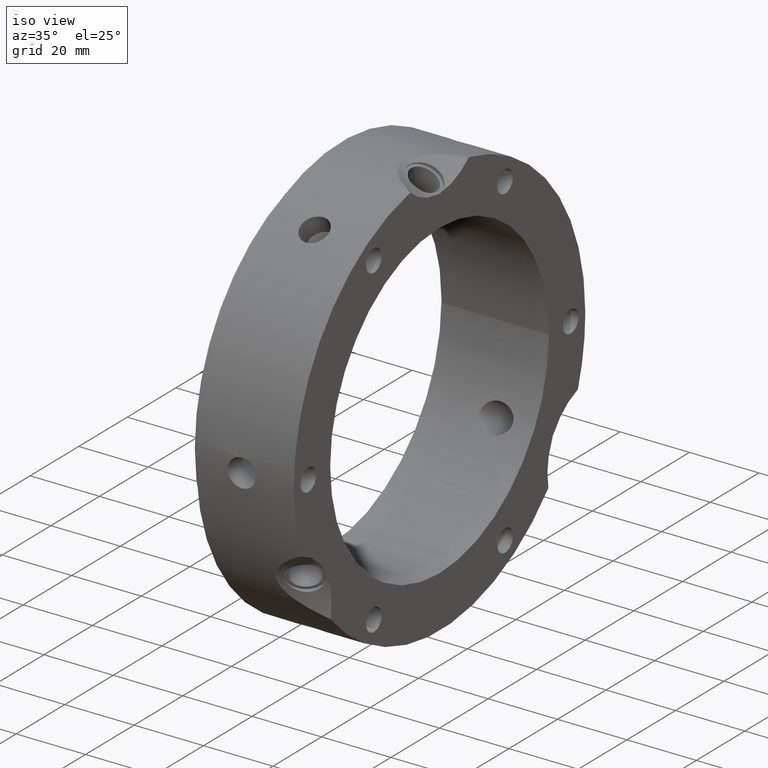
[diagram: clean part render]
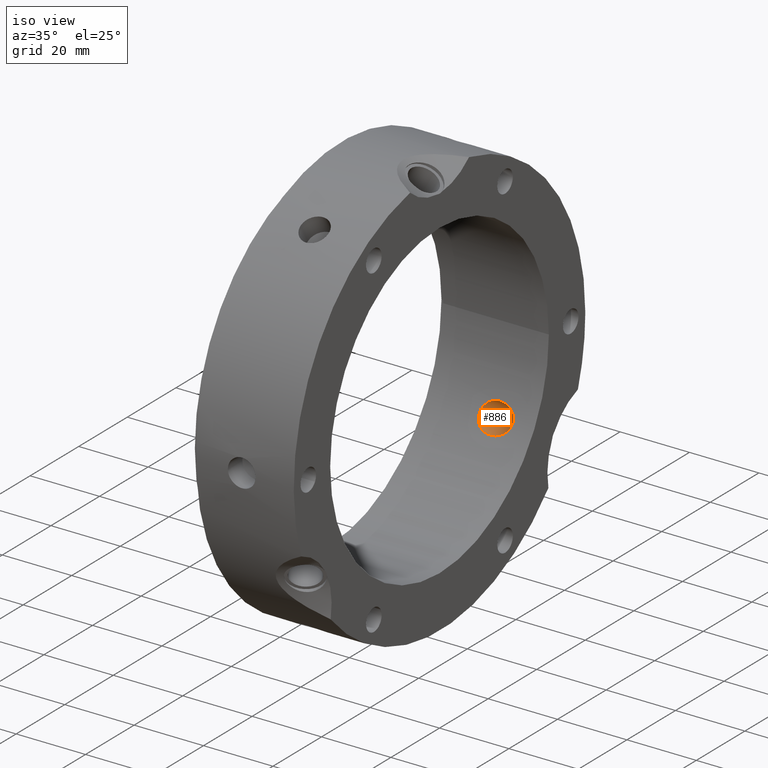
[diagram: same view with one face highlighted and labeled with its STEP entity id]
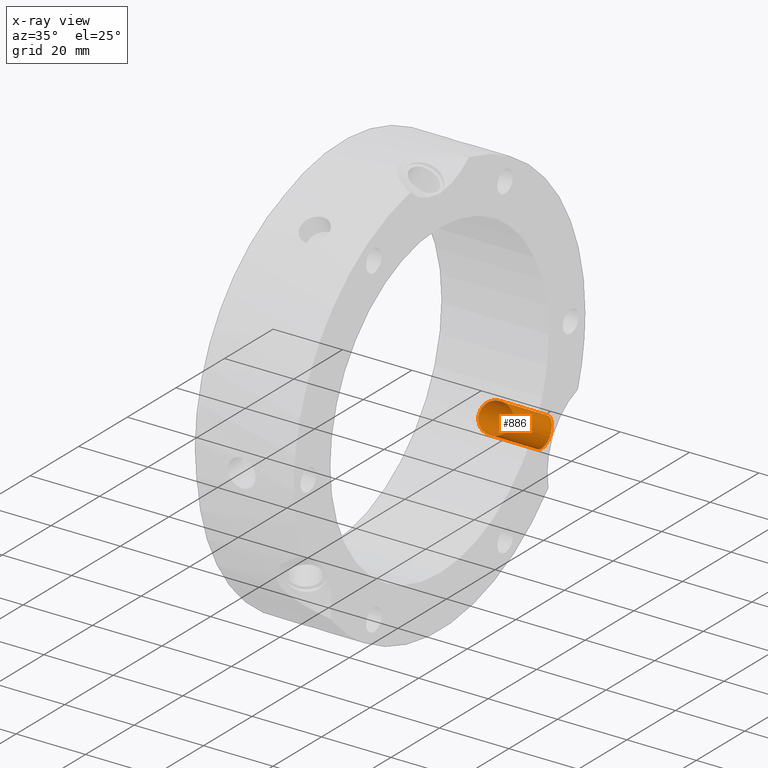
[diagram: x-ray of the same camera — body ghosted, the highlighted face saturated]
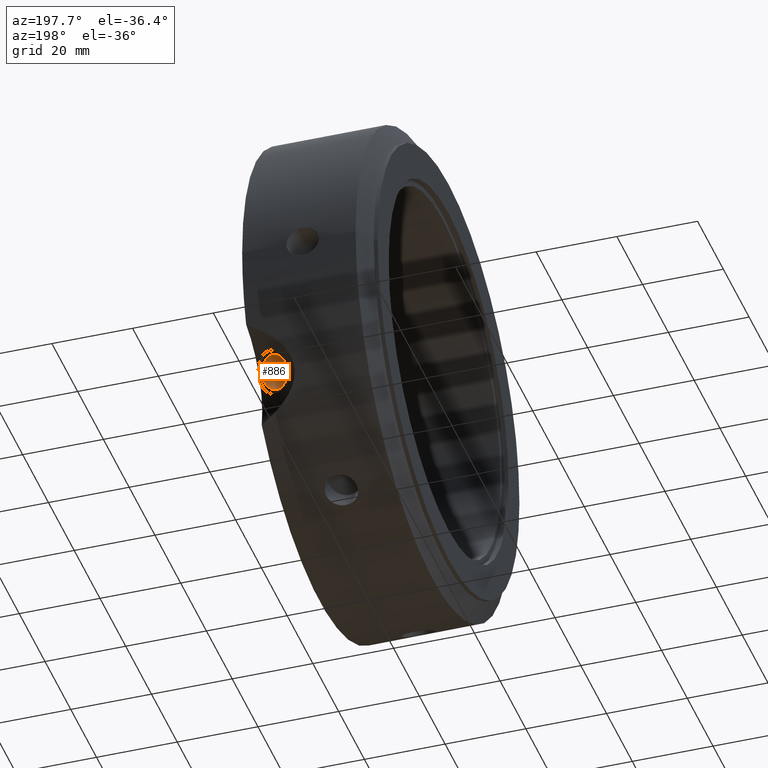
[diagram: same view with one face highlighted and labeled with its STEP entity id]
A machine part, iso view. The second image highlights one B-rep face of the part: STEP entity #886.
The next image is the same camera in x-ray: the body ghosted, the highlighted face saturated — about 0% of this face is hidden behind the body in this view.
A second angle (auxiliary view) of the same face is appended — the face is thin or edge-on in the first view.
In plain terms, the highlighted cylindrical surface (bore or boss wall) has radius 4.188 mm, axis along (0.5, 0.75, -0.433).
Its self-contained STEP definition (entity closure, byte-faithful):
#829=CARTESIAN_POINT('',(23.000000000000014,41.999999999999964,-24.248711305964292));
#830=DIRECTION('',(0.500000000000001,0.75,-0.43301270189222));
#831=DIRECTION('',(0.0,-0.5,-0.866025403784438));
#832=AXIS2_PLACEMENT_3D('',#829,#830,#831);
#833=CYLINDRICAL_SURFACE('',#832,4.188000000000001);
#834=CARTESIAN_POINT('',(20.868002474099171,40.896003711148722,-18.775432896679369));
#835=VERTEX_POINT('',#834);
#836=CARTESIAN_POINT('',(20.868002474099171,40.896003711148722,-18.775432896679369));
#837=CARTESIAN_POINT('',(21.466803886779473,40.896003711148722,-18.775432896679369));
#838=CARTESIAN_POINT('',(22.111155074245772,40.853826474595451,-18.868214960374011));
#839=CARTESIAN_POINT('',(23.320477676763012,40.674783163468788,-19.251147711162595));
#840=CARTESIAN_POINT('',(23.885471448853725,40.537575629816132,-19.541068030448169));
#841=CARTESIAN_POINT('',(24.764662890841826,40.211127066054345,-20.203718014746237));
#842=CARTESIAN_POINT('',(25.151019512990729,40.005284520578783,-20.611705088451412));
#843=CARTESIAN_POINT('',(25.67763110039148,39.5231338797999,-21.521781198993533));
#844=CARTESIAN_POINT('',(25.816647968265496,39.245905171329511,-22.024098254227145));
#845=CARTESIAN_POINT('',(25.816647968265496,38.709033089293676,-22.953987977478498));
#846=CARTESIAN_POINT('',(25.689932319263455,38.425336776092564,-23.425223165847825));
#847=CARTESIAN_POINT('',(25.204986786179106,37.897963783409359,-24.26915587093109));
#848=CARTESIAN_POINT('',(24.847945479975312,37.654498789754527,-24.642668029173574));
#849=CARTESIAN_POINT('',(23.992860729635041,37.230007877335808,-25.280423644847943));
#850=CARTESIAN_POINT('',(23.412370076078098,37.033526621451209,-25.565015195072661));
#851=CARTESIAN_POINT('',(22.16190103616924,36.772290543542518,-25.939366682661952));
#852=CARTESIAN_POINT('',(21.491865362355981,36.708003711148713,-26.029261678777821));
#853=CARTESIAN_POINT('',(20.266720556365069,36.708003711148713,-26.029261678777821));
#854=CARTESIAN_POINT('',(19.619670879997866,36.768090637763812,-25.945266801733741));
#855=CARTESIAN_POINT('',(18.419093944900077,37.022478794806673,-25.580958198910281));
#856=CARTESIAN_POINT('',(17.865754979470758,37.216688365938708,-25.299960301400599));
#857=CARTESIAN_POINT('',(17.048439994724959,37.643449260062397,-24.65965141413955));
#858=CARTESIAN_POINT('',(16.710611589867241,37.892033344984753,-24.278536453338681));
#859=CARTESIAN_POINT('',(16.258760603790861,38.42579011830076,-23.424606229578853));
#860=CARTESIAN_POINT('',(16.144876258800874,38.710507878968016,-22.951433566832058));
#861=CARTESIAN_POINT('',(16.144876258800874,39.231778461631436,-22.048566433167977));
#862=CARTESIAN_POINT('',(16.258760603790861,39.499199127612869,-21.565407288148126));
#863=CARTESIAN_POINT('',(16.710611589867238,39.971846007790205,-20.676195251134533));
#864=CARTESIAN_POINT('',(17.048439994724951,40.177609203144883,-20.270357638214826));
#865=CARTESIAN_POINT('',(17.865754979470751,40.518752518720049,-19.580617418931432));
#866=CARTESIAN_POINT('',(18.419093944900077,40.664999050807431,-19.271928047918173));
#867=CARTESIAN_POINT('',(19.619670879997866,40.853305477148339,-18.869467140085426));
#868=CARTESIAN_POINT('',(20.266720556365065,40.89600371114873,-18.775432896679373));
#869=CARTESIAN_POINT('',(20.868002474099171,40.89600371114873,-18.775432896679373));
#870=B_SPLINE_CURVE_WITH_KNOTS('',3,(#836,#837,#838,#839,#840,#841,#842,#843,#844,#845,#846,#847,#848,#849,#850,#851,#852,#853,#854,#855,#856,#857,#858,#859,#860,#861,#862,#863,#864,#865,#866,#867,#868,#869),.UNSPECIFIED.,.T.,.U.,(4,2,2,2,2,2,2,2,2,2,2,2,2,2,2,2,4),(0.0,0.179640423804092,0.359280847608184,0.524138048226052,0.688995248843919,0.846261297447551,1.003527346051183,1.190686212528225,1.377845079005266,1.558229654325498,1.738614229645731,1.894995404444759,2.051376579243787,2.207757754042814,2.364138928841842,2.544523504162075,2.724908079482307),.UNSPECIFIED.);
#871=EDGE_CURVE('',#835,#835,#870,.T.);
#872=ORIENTED_EDGE('',*,*,#871,.F.);
#873=EDGE_LOOP('',(#872));
#874=FACE_OUTER_BOUND('',#873,.T.);
#875=CARTESIAN_POINT('',(27.500000000000021,46.655999999999963,-31.772740014043496));
#876=VERTEX_POINT('',#875);
#877=CARTESIAN_POINT('',(27.500000000000028,48.749999999999964,-28.145825622994273));
#878=DIRECTION('',(0.500000000000001,0.75,-0.43301270189222));
#879=DIRECTION('',(0.0,-0.5,-0.866025403784438));
#880=AXIS2_PLACEMENT_3D('',#877,#878,#879);
#881=CIRCLE('',#880,4.188000000000001);
#882=EDGE_CURVE('',#876,#876,#881,.T.);
#883=ORIENTED_EDGE('',*,*,#882,.T.);
#884=EDGE_LOOP('',(#883));
#885=FACE_BOUND('',#884,.T.);
#886=ADVANCED_FACE('',(#874,#885),#833,.F.);